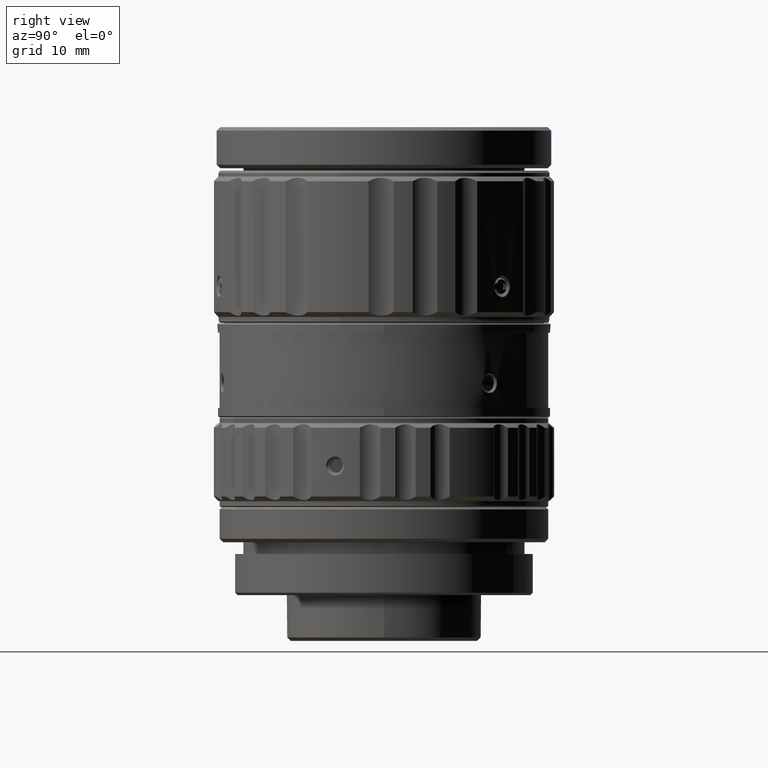
[diagram: clean part render]
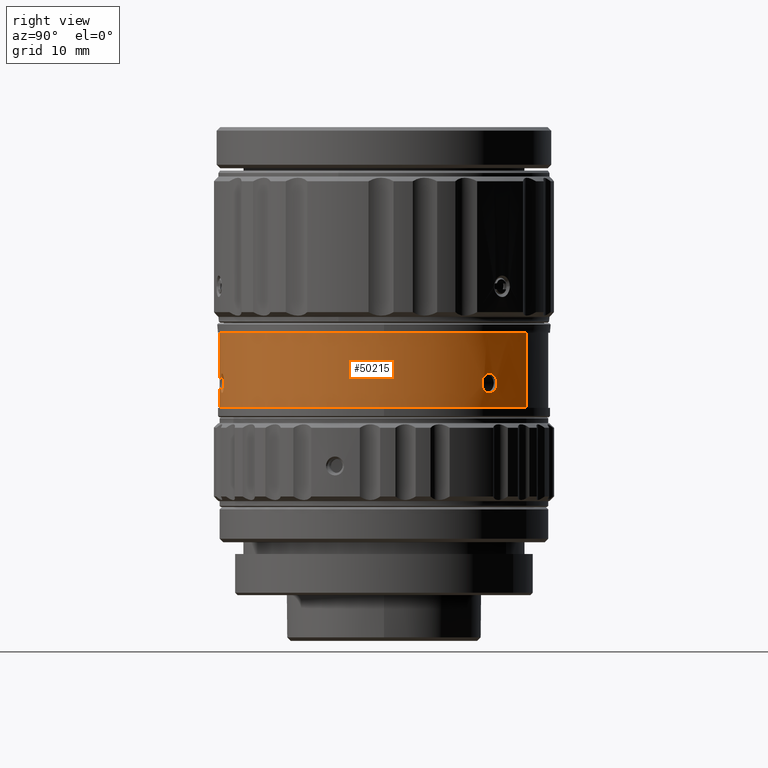
[diagram: same view with one face highlighted and labeled with its STEP entity id]
A machine part, right view. The second image highlights one B-rep face of the part: STEP entity #50215.
In plain terms, the highlighted cylindrical surface (partial cylindrical patch) has radius 14 mm, axis along (0, 0, 1).
Its self-contained STEP definition (entity closure, byte-faithful):
#332 = CARTESIAN_POINT ( 'NONE',  ( 2.431196554228424844, -13.78781628608742160, 9.975894924554790322 ) ) ;
#846 = CARTESIAN_POINT ( 'NONE',  ( 2.540017387607841570, -13.76810512469494974, 8.320473012455209982 ) ) ;
#946 = CARTESIAN_POINT ( 'NONE',  ( -7.000003640199623511, -12.12436195799370964, 13.44999998884000014 ) ) ;
#1005 = CARTESIAN_POINT ( 'NONE',  ( 10.17099046434829113, 9.620348835397662057, 9.150003870101333092 ) ) ;
#1808 = CARTESIAN_POINT ( 'NONE',  ( 7.000003640199622623, 12.12436195799370431, -22.23103380644400318 ) ) ;
#2164 = CARTESIAN_POINT ( 'NONE',  ( 10.58387078739634113, 9.164739986741961886, 9.961009042863569363 ) ) ;
#2724 = CARTESIAN_POINT ( 'NONE',  ( 10.44809317152066441, 9.319234354179087632, 9.878613220287064678 ) ) ;
#2795 = EDGE_CURVE ( 'NONE', #48613, #49951, #30566, .T. ) ;
#2849 = CARTESIAN_POINT ( 'NONE',  ( 11.22832062232816241, 8.362223442582187971, 9.365793184085088541 ) ) ;
#3024 = CARTESIAN_POINT ( 'NONE',  ( 10.72494975504410064, 8.999287304940610355, 9.975792160454480140 ) ) ;
#3146 = CARTESIAN_POINT ( 'NONE',  ( 11.18917736752776548, 8.415842825261350413, 8.715543117004044049 ) ) ;
#3431 = CARTESIAN_POINT ( 'NONE',  ( 11.17798795616930008, 8.429386107730799438, 9.571838418268415083 ) ) ;
#3673 = CARTESIAN_POINT ( 'NONE',  ( 1.607481247759668497, -13.90741557233841519, 9.260456237028149573 ) ) ;
#4016 = CARTESIAN_POINT ( 'NONE',  ( 10.72498812335424212, 8.999401530443519093, 8.324106703133420382 ) ) ;
#4276 = CARTESIAN_POINT ( 'NONE',  ( 10.72494975504410064, 8.999287304940610355, 9.975792160454480140 ) ) ;
#4878 = CARTESIAN_POINT ( 'NONE',  ( 2.935832921519491823, -13.68893870332210838, 8.482536287753283943 ) ) ;
#4908 = CARTESIAN_POINT ( 'NONE',  ( 2.934332582899339847, -13.68926678221618687, 9.818975142833812342 ) ) ;
#5027 = CARTESIAN_POINT ( 'NONE',  ( 3.245971252348314184, -13.61851054146773876, 9.150003876167836836 ) ) ;
#5858 = EDGE_CURVE ( 'NONE', #28402, #52299, #40515, .T. ) ;
#6200 = CARTESIAN_POINT ( 'NONE',  ( 2.431218821078075187, -13.78781244162943942, 8.324106473338771295 ) ) ;
#6590 = CARTESIAN_POINT ( 'NONE',  ( 7.000003640199624400, 12.12436195799370786, 13.44999998884000014 ) ) ;
#6619 = LINE ( 'NONE', #18666, #19632 ) ;
#7143 = CARTESIAN_POINT ( 'NONE',  ( 11.24043458251022720, 8.345827356226065419, 9.260455397705896985 ) ) ;
#7315 = ORIENTED_EDGE ( 'NONE', *, *, #30354, .T. ) ;
#7435 = CARTESIAN_POINT ( 'NONE',  ( 11.24023567318605110, 8.346095249394741344, 8.929522990226608670 ) ) ;
#7747 = CARTESIAN_POINT ( 'NONE',  ( 10.17099046434829113, 9.620348835397662057, 9.150003870101333092 ) ) ;
#7766 = CARTESIAN_POINT ( 'NONE',  ( -7.000003640199623511, -12.12436195799370964, 7.049999990609999934 ) ) ;
#8367 = CARTESIAN_POINT ( 'NONE',  ( 3.144407538627270071, -13.64238512721498076, 9.571916823590621348 ) ) ;
#8574 = EDGE_CURVE ( 'NONE', #45846, #22033, #6619, .T. ) ;
#9842 = DIRECTION ( 'NONE',  ( 0.000000000000000000, 0.000000000000000000, 1.000000000000000000 ) ) ;
#10405 = EDGE_CURVE ( 'NONE', #48434, #43652, #32894, .T. ) ;
#10714 = ORIENTED_EDGE ( 'NONE', *, *, #45039, .T. ) ;
#10976 = EDGE_LOOP ( 'NONE', ( #13280, #36057, #45932 ) ) ;
#11425 = CARTESIAN_POINT ( 'NONE',  ( 1.768837327406026283, -13.88803746107450010, 9.660808434581964477 ) ) ;
#12315 = CARTESIAN_POINT ( 'NONE',  ( 10.72494975504410064, 8.999287304940610355, 9.975792160454480140 ) ) ;
#12890 = CARTESIAN_POINT ( 'NONE',  ( 10.24208042068689473, 9.544722239291539623, 8.729135771190991377 ) ) ;
#13280 = ORIENTED_EDGE ( 'NONE', *, *, #49983, .T. ) ;
#14183 = CIRCLE ( 'NONE', #46226, 14.00000728040000020 ) ;
#14325 = B_SPLINE_CURVE_WITH_KNOTS ( 'NONE', 3,
 ( #29489, #38388, #46407, #29198, #42425, #3146, #7435, #7143, #2849, #3431, #16602, #51569, #20628, #24912, #38113, #12315 ),
 .UNSPECIFIED., .F., .F.,
 ( 4, 2, 2, 2, 2, 2, 2, 4 ),
 ( 0.000000000000000000, 0.1249999999999995837, 0.2499999999999991673, 0.4999999999999994449, 0.6249999999999995559, 0.7499999999999996669, 0.8749999999999998890, 1.000000000000000000 ),
 .UNSPECIFIED. ) ;
#14409 = B_SPLINE_CURVE_WITH_KNOTS ( 'NONE', 3,
 ( #25163, #16867, #56407, #50688, #42944, #34341, #30039, #3673, #38361, #43230, #11425, #50965, #28880, #46378, #38082, #42093 ),
 .UNSPECIFIED., .F., .F.,
 ( 4, 2, 2, 2, 2, 2, 2, 4 ),
 ( 0.000000000000000000, 0.1249999999999993339, 0.2499999999999986677, 0.4999999999999991118, 0.6249999999999993339, 0.7499999999999995559, 0.8749999999999997780, 1.000000000000000000 ),
 .UNSPECIFIED. ) ;
#15954 = DIRECTION ( 'NONE',  ( -1.000000000000000000, 0.000000000000000000, 0.000000000000000000 ) ) ;
#15989 = EDGE_LOOP ( 'NONE', ( #55705, #40810, #10714 ) ) ;
#16602 = CARTESIAN_POINT ( 'NONE',  ( 11.14297464126796378, 8.475876718683744926, 9.660807225958830458 ) ) ;
#16867 = CARTESIAN_POINT ( 'NONE',  ( 2.322028548288397776, -13.80654243806427317, 8.320464341541978115 ) ) ;
#17785 = CARTESIAN_POINT ( 'NONE',  ( 3.086544278644338224, -13.65574612323894677, 8.637886179563791345 ) ) ;
#17811 = CARTESIAN_POINT ( 'NONE',  ( 2.644962550679790692, -13.74827090819386655, 9.961008964151339740 ) ) ;
#18644 = DIRECTION ( 'NONE',  ( 0.000000000000000000, 0.000000000000000000, 1.000000000000000000 ) ) ;
#18666 = CARTESIAN_POINT ( 'NONE',  ( -7.000003640199621735, -12.12436195799370608, -22.23103380644400318 ) ) ;
#19632 = VECTOR ( 'NONE', #32118, 1000.000000000000000 ) ;
#19648 = CARTESIAN_POINT ( 'NONE',  ( 10.17108260429136024, 9.620253766140246299, 9.261078994657665930 ) ) ;
#19818 = CARTESIAN_POINT ( 'NONE',  ( 0.000000000000000000, 0.000000000000000000, 13.44999998884000014 ) ) ;
#20500 = CARTESIAN_POINT ( 'NONE',  ( 10.17099046434829113, 9.620348835397662057, 9.150003870101333092 ) ) ;
#20628 = CARTESIAN_POINT ( 'NONE',  ( 10.99276409185467962, 8.670065696321760385, 9.878082856833763969 ) ) ;
#21548 = VERTEX_POINT ( 'NONE', #4276 ) ;
#22033 = VERTEX_POINT ( 'NONE', #946 ) ;
#22171 = AXIS2_PLACEMENT_3D ( 'NONE', #27224, #18644, #53602 ) ;
#22384 = CARTESIAN_POINT ( 'NONE',  ( 3.245842849209123138, -13.61854280260895145, 9.261078966845060378 ) ) ;
#22405 = VECTOR ( 'NONE', #9842, 1000.000000000000000 ) ;
#22893 = CARTESIAN_POINT ( 'NONE',  ( 3.245971252348314184, -13.61851054146773876, 9.150003876167836836 ) ) ;
#23226 = EDGE_CURVE ( 'NONE', #43652, #25504, #14409, .T. ) ;
#23643 = CARTESIAN_POINT ( 'NONE',  ( 10.24244835826934086, 9.544329329947466078, 9.571916933111999981 ) ) ;
#24437 = CARTESIAN_POINT ( 'NONE',  ( 7.000003640199624400, 12.12436195799370786, 7.049999990609999934 ) ) ;
#24912 = CARTESIAN_POINT ( 'NONE',  ( 10.86346518016307350, 8.831535870792205145, 9.960894923544431734 ) ) ;
#25163 = CARTESIAN_POINT ( 'NONE',  ( 2.431218821078075187, -13.78781244162943942, 8.324106473338771295 ) ) ;
#25504 = VERTEX_POINT ( 'NONE', #47409 ) ;
#25786 = CARTESIAN_POINT ( 'NONE',  ( 10.18518446311826686, 9.605412610674186169, 8.933437332922636642 ) ) ;
#27224 = CARTESIAN_POINT ( 'NONE',  ( 0.000000000000000000, 0.000000000000000000, -22.23103380644400318 ) ) ;
#28402 = VERTEX_POINT ( 'NONE', #24437 ) ;
#28880 = CARTESIAN_POINT ( 'NONE',  ( 2.012115260383904758, -13.85504578664767728, 9.878084389623149164 ) ) ;
#29198 = CARTESIAN_POINT ( 'NONE',  ( 10.99159055438028787, 8.671539261249668229, 8.421164072865762407 ) ) ;
#29489 = CARTESIAN_POINT ( 'NONE',  ( 10.72498812335424212, 8.999401530443519093, 8.324106703133420382 ) ) ;
#29514 = CARTESIAN_POINT ( 'NONE',  ( 10.58265791960032765, 9.166128367015058842, 8.339783873745982845 ) ) ;
#29547 = DIRECTION ( 'NONE',  ( -1.000000000000000000, 0.000000000000000000, 0.000000000000000000 ) ) ;
#29806 = CARTESIAN_POINT ( 'NONE',  ( 10.44830452846828805, 9.318985479346274303, 8.421265468955050792 ) ) ;
#30039 = CARTESIAN_POINT ( 'NONE',  ( 1.607812663451160473, -13.90737726316387324, 8.929523582944662863 ) ) ;
#30354 = EDGE_CURVE ( 'NONE', #45846, #28402, #34339, .T. ) ;
#30566 = B_SPLINE_CURVE_WITH_KNOTS ( 'NONE', 3,
 ( #7747, #51017, #25786, #12890, #38699, #34670, #29806, #29514, #47854, #4016 ),
 .UNSPECIFIED., .F., .F.,
 ( 4, 2, 2, 2, 4 ),
 ( 0.4999443007280376383, 0.6249582255460282010, 0.7499721503640188747, 0.8749860751820094373, 1.000000000000000000 ),
 .UNSPECIFIED. ) ;
#30684 = EDGE_CURVE ( 'NONE', #52299, #22033, #14183, .T. ) ;
#30976 = CARTESIAN_POINT ( 'NONE',  ( 2.540110832075012315, -13.76808864308785196, 9.979534546757040658 ) ) ;
#31533 = CYLINDRICAL_SURFACE ( 'NONE', #22171, 14.00000728039999665 ) ;
#32118 = DIRECTION ( 'NONE',  ( 0.000000000000000000, 0.000000000000000000, 1.000000000000000000 ) ) ;
#32380 = FACE_BOUND ( 'NONE', #10976, .T. ) ;
#32442 = EDGE_CURVE ( 'NONE', #21548, #48613, #50948, .T. ) ;
#32521 = CARTESIAN_POINT ( 'NONE',  ( 10.38808661576134540, 9.385839824536475362, 9.818975278838719234 ) ) ;
#32806 = CARTESIAN_POINT ( 'NONE',  ( 10.18495155225288684, 9.605661487298585044, 9.365811180036692107 ) ) ;
#32894 = B_SPLINE_CURVE_WITH_KNOTS ( 'NONE', 3,
 ( #22893, #52472, #40392, #48436, #17785, #4878, #53007, #47882, #846, #48715 ),
 .UNSPECIFIED., .F., .F.,
 ( 4, 2, 2, 2, 4 ),
 ( 0.4999442665491445337, 0.6249581999118584141, 0.7499721332745723501, 0.8749860666372861751, 1.000000000000000000 ),
 .UNSPECIFIED. ) ;
#34339 = CIRCLE ( 'NONE', #41656, 14.00000728040000020 ) ;
#34341 = CARTESIAN_POINT ( 'NONE',  ( 1.693744958080192431, -13.89803326519107074, 8.715543492746798293 ) ) ;
#34670 = CARTESIAN_POINT ( 'NONE',  ( 10.38705227095512562, 9.386975172553112756, 8.482536212291254429 ) ) ;
#35288 = CARTESIAN_POINT ( 'NONE',  ( 3.226271099805522180, -13.62325752229591380, 9.365811127411221904 ) ) ;
#35649 = EDGE_LOOP ( 'NONE', ( #7315, #43722, #47089, #45763 ) ) ;
#35842 = FACE_BOUND ( 'NONE', #15989, .T. ) ;
#36057 = ORIENTED_EDGE ( 'NONE', *, *, #10405, .T. ) ;
#36499 = B_SPLINE_CURVE_WITH_KNOTS ( 'NONE', 3,
 ( #332, #30976, #17811, #48744, #4908, #43340, #8367, #35288, #22384, #39870 ),
 .UNSPECIFIED., .F., .F.,
 ( 4, 2, 2, 2, 4 ),
 ( 0.000000000000000000, 0.1249860666372861334, 0.2499721332745722668, 0.3749581999118584141, 0.4999442665491445337 ),
 .UNSPECIFIED. ) ;
#37301 = DIRECTION ( 'NONE',  ( 0.000000000000000000, 0.000000000000000000, -1.000000000000000000 ) ) ;
#38082 = CARTESIAN_POINT ( 'NONE',  ( 2.322146308933323855, -13.80652167916517392, 9.979528391958581324 ) ) ;
#38113 = CARTESIAN_POINT ( 'NONE',  ( 10.79572559115233332, 8.914298250515713562, 9.979526504838666767 ) ) ;
#38361 = CARTESIAN_POINT ( 'NONE',  ( 1.627737675577700216, -13.90512261585579346, 9.365794126507553941 ) ) ;
#38388 = CARTESIAN_POINT ( 'NONE',  ( 10.79580230722270251, 8.914206818128217691, 8.320464919303830698 ) ) ;
#38699 = CARTESIAN_POINT ( 'NONE',  ( 10.28295094661802977, 9.500898778490899588, 8.637886107882938092 ) ) ;
#39870 = CARTESIAN_POINT ( 'NONE',  ( 3.245971252348314184, -13.61851054146773876, 9.150003876167836836 ) ) ;
#40392 = CARTESIAN_POINT ( 'NONE',  ( 3.225939110492449746, -13.62333479084180254, 8.933437371455838161 ) ) ;
#40515 = LINE ( 'NONE', #1808, #22405 ) ;
#40810 = ORIENTED_EDGE ( 'NONE', *, *, #2795, .T. ) ;
#41273 = FACE_OUTER_BOUND ( 'NONE', #35649, .T. ) ;
#41656 = AXIS2_PLACEMENT_3D ( 'NONE', #45734, #50051, #15954 ) ;
#42093 = CARTESIAN_POINT ( 'NONE',  ( 2.431196554228424844, -13.78781628608742160, 9.975894924554790322 ) ) ;
#42425 = CARTESIAN_POINT ( 'NONE',  ( 11.04775874592046669, 8.599604917422201567, 8.482064807931747552 ) ) ;
#42944 = CARTESIAN_POINT ( 'NONE',  ( 1.923596918066961425, -13.86744219173413128, 8.482064809436804964 ) ) ;
#43230 = CARTESIAN_POINT ( 'NONE',  ( 1.711068606669616354, -13.89511457764019298, 9.571839536770950119 ) ) ;
#43340 = CARTESIAN_POINT ( 'NONE',  ( 3.087243465052103009, -13.65559447732852583, 9.661348111516463888 ) ) ;
#43652 = VERTEX_POINT ( 'NONE', #6200 ) ;
#43722 = ORIENTED_EDGE ( 'NONE', *, *, #5858, .T. ) ;
#45039 = EDGE_CURVE ( 'NONE', #49951, #21548, #14325, .T. ) ;
#45734 = CARTESIAN_POINT ( 'NONE',  ( 0.000000000000000000, 0.000000000000000000, 7.049999990609999934 ) ) ;
#45763 = ORIENTED_EDGE ( 'NONE', *, *, #8574, .F. ) ;
#45846 = VERTEX_POINT ( 'NONE', #7766 ) ;
#45932 = ORIENTED_EDGE ( 'NONE', *, *, #23226, .T. ) ;
#46226 = AXIS2_PLACEMENT_3D ( 'NONE', #19818, #37301, #29547 ) ;
#46378 = CARTESIAN_POINT ( 'NONE',  ( 2.216602117490547474, -13.82380470868674216, 9.960896698016345141 ) ) ;
#46407 = CARTESIAN_POINT ( 'NONE',  ( 10.86377591308041168, 8.831139733064484076, 8.339241158084622185 ) ) ;
#46863 = CARTESIAN_POINT ( 'NONE',  ( 10.65345933143759360, 9.083844571731779283, 9.979534586601916502 ) ) ;
#47089 = ORIENTED_EDGE ( 'NONE', *, *, #30684, .T. ) ;
#47409 = CARTESIAN_POINT ( 'NONE',  ( 2.431196554228424844, -13.78781628608742160, 9.975894924554790322 ) ) ;
#47854 = CARTESIAN_POINT ( 'NONE',  ( 10.65352022577695656, 9.083772005996733512, 8.320472990738279506 ) ) ;
#47882 = CARTESIAN_POINT ( 'NONE',  ( 2.646771227082119093, -13.74791474915489964, 8.339783919480538543 ) ) ;
#48434 = VERTEX_POINT ( 'NONE', #5027 ) ;
#48436 = CARTESIAN_POINT ( 'NONE',  ( 3.144931753616831749, -13.64226294399348838, 8.729135832588902133 ) ) ;
#48613 = VERTEX_POINT ( 'NONE', #1005 ) ;
#48715 = CARTESIAN_POINT ( 'NONE',  ( 2.431218821078075187, -13.78781244162943942, 8.324106473338771295 ) ) ;
#48744 = CARTESIAN_POINT ( 'NONE',  ( 2.846647316140693107, -13.70793124133241392, 9.878613093638957565 ) ) ;
#49732 = CARTESIAN_POINT ( 'NONE',  ( 10.72498812335424212, 8.999401530443519093, 8.324106703133420382 ) ) ;
#49951 = VERTEX_POINT ( 'NONE', #49732 ) ;
#49983 = EDGE_CURVE ( 'NONE', #25504, #48434, #36499, .T. ) ;
#50051 = DIRECTION ( 'NONE',  ( 0.000000000000000000, 0.000000000000000000, 1.000000000000000000 ) ) ;
#50215 = ADVANCED_FACE ( 'NONE', ( #35842, #32380, #41273 ), #31533, .T. ) ;
#50688 = CARTESIAN_POINT ( 'NONE',  ( 2.013978005009892769, -13.85476628013946332, 8.421163934780967253 ) ) ;
#50948 = B_SPLINE_CURVE_WITH_KNOTS ( 'NONE', 3,
 ( #3024, #46863, #2164, #2724, #32521, #54597, #23643, #32806, #19648, #20500 ),
 .UNSPECIFIED., .F., .F.,
 ( 4, 2, 2, 2, 4 ),
 ( 0.000000000000000000, 0.1249860751820094096, 0.2499721503640188192, 0.3749582255460282010, 0.4999443007280376383 ),
 .UNSPECIFIED. ) ;
#50965 = CARTESIAN_POINT ( 'NONE',  ( 1.924514873725055697, -13.86732174977722742, 9.818875595577832627 ) ) ;
#51017 = CARTESIAN_POINT ( 'NONE',  ( 10.17090338802993266, 9.620443240289016984, 9.038903995436378125 ) ) ;
#51569 = CARTESIAN_POINT ( 'NONE',  ( 11.04719557397368845, 8.600339525660727347, 9.818874162243968584 ) ) ;
#52299 = VERTEX_POINT ( 'NONE', #6590 ) ;
#52472 = CARTESIAN_POINT ( 'NONE',  ( 3.246096548180631647, -13.61848233351100212, 9.038904020200414280 ) ) ;
#53007 = CARTESIAN_POINT ( 'NONE',  ( 2.846326013236003760, -13.70798986375889683, 8.421265537672402601 ) ) ;
#53602 = DIRECTION ( 'NONE',  ( -0.4999999999999730771, -0.8660254037844542507, 0.000000000000000000 ) ) ;
#54597 = CARTESIAN_POINT ( 'NONE',  ( 10.28247004689922761, 9.501428444346407431, 9.661348233807263597 ) ) ;
#55705 = ORIENTED_EDGE ( 'NONE', *, *, #32442, .T. ) ;
#56407 = CARTESIAN_POINT ( 'NONE',  ( 2.216103460356182886, -13.82387577833909553, 8.339240730713228800 ) ) ;